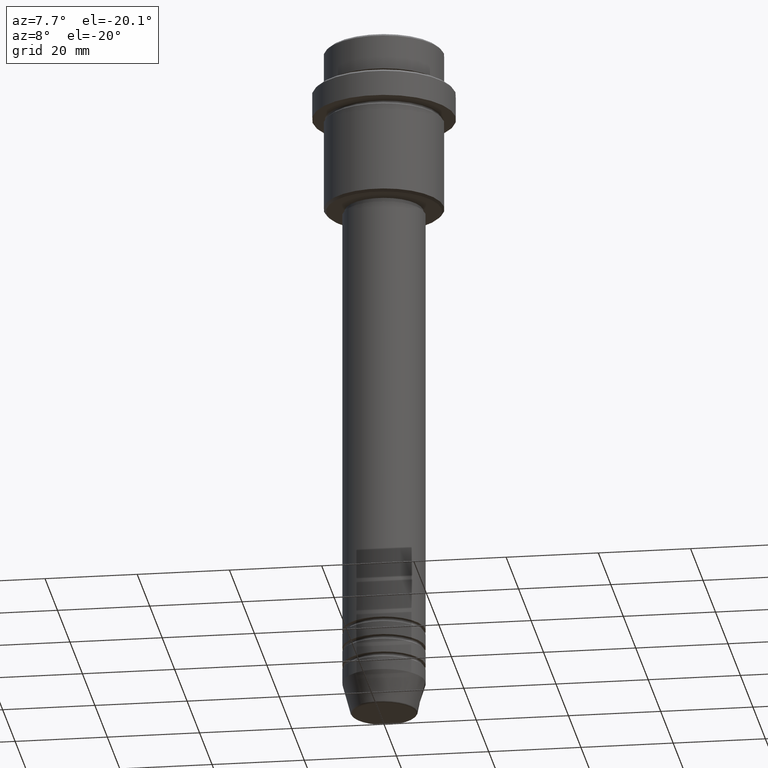
[diagram: clean part render]
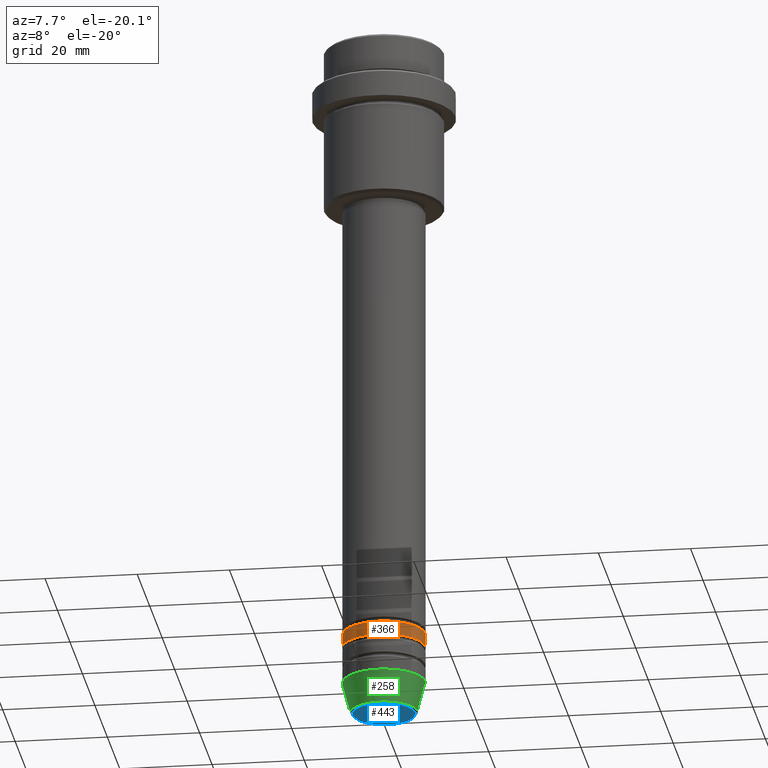
[diagram: same view with three faces highlighted in distinct colors, each labeled with its STEP entity id]
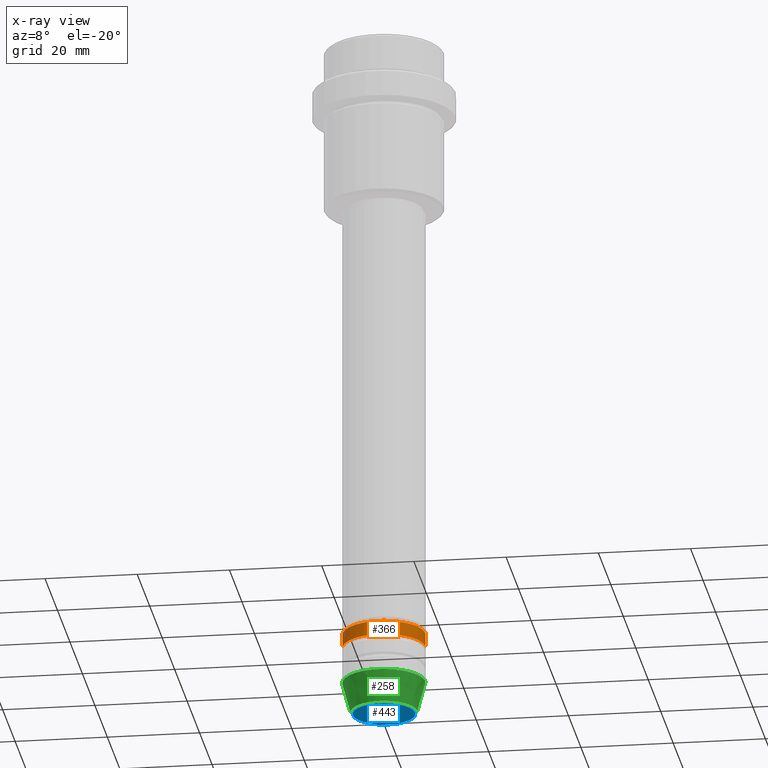
[diagram: x-ray of the same camera — body ghosted, the three highlighted faces saturated]
A machine part, auxiliary view with three faces highlighted in distinct colors.
The next image is the same camera in x-ray (body ghosted, the three faces saturated) — at least one of them is partly hidden behind the body in this view.
Their STEP definitions:

[orange] entity #366 — the highlighted cylindrical surface (partial cylindrical patch) has radius 9 mm, axis along (-0, -0, 1).
#31 = EDGE_CURVE ( 'NONE', #1288, #670, #1318, .T. ) ;
#63 = DIRECTION ( 'NONE',  ( -0.000000000000000000, -0.000000000000000000, 1.000000000000000000 ) ) ;
#88 = LINE ( 'NONE', #490, #811 ) ;
#97 = DIRECTION ( 'NONE',  ( 1.000000000000000000, 0.000000000000000000, 0.000000000000000000 ) ) ;
#153 = DIRECTION ( 'NONE',  ( -0.000000000000000000, -0.000000000000000000, 1.000000000000000000 ) ) ;
#185 = CIRCLE ( 'NONE', #1125, 9.000000000000000000 ) ;
#255 = VECTOR ( 'NONE', #313, 1000.000000000000000 ) ;
#261 = AXIS2_PLACEMENT_3D ( 'NONE', #526, #430, #1305 ) ;
#287 = DIRECTION ( 'NONE',  ( 1.000000000000000000, 0.000000000000000000, 0.000000000000000000 ) ) ;
#313 = DIRECTION ( 'NONE',  ( -0.000000000000000000, -0.000000000000000000, 1.000000000000000000 ) ) ;
#366 = ADVANCED_FACE ( 'NONE', ( #758 ), #1190, .T. ) ;
#396 = VERTEX_POINT ( 'NONE', #622 ) ;
#411 = ORIENTED_EDGE ( 'NONE', *, *, #446, .F. ) ;
#421 = CARTESIAN_POINT ( 'NONE',  ( -9.000000000000000000, 1.102182119232617714E-15, 0.000000000000000000 ) ) ;
#430 = DIRECTION ( 'NONE',  ( -0.000000000000000000, -0.000000000000000000, 1.000000000000000000 ) ) ;
#446 = EDGE_CURVE ( 'NONE', #1288, #396, #964, .T. ) ;
#490 = CARTESIAN_POINT ( 'NONE',  ( 9.000000000000000000, 0.000000000000000000, 0.000000000000000000 ) ) ;
#521 = CARTESIAN_POINT ( 'NONE',  ( -9.000000000000000000, 1.102182119232617714E-15, -135.9999999999998579 ) ) ;
#526 = CARTESIAN_POINT ( 'NONE',  ( 0.000000000000000000, 0.000000000000000000, -135.9999999999998579 ) ) ;
#589 = CARTESIAN_POINT ( 'NONE',  ( 9.000000000000000000, 0.000000000000000000, -135.9999999999998579 ) ) ;
#622 = CARTESIAN_POINT ( 'NONE',  ( -9.000000000000000000, 1.102182119232617714E-15, -132.9999999999998579 ) ) ;
#670 = VERTEX_POINT ( 'NONE', #589 ) ;
#671 = ORIENTED_EDGE ( 'NONE', *, *, #31, .T. ) ;
#676 = EDGE_CURVE ( 'NONE', #396, #1263, #185, .T. ) ;
#738 = CARTESIAN_POINT ( 'NONE',  ( 0.000000000000000000, 0.000000000000000000, 0.000000000000000000 ) ) ;
#755 = ORIENTED_EDGE ( 'NONE', *, *, #1148, .T. ) ;
#758 = FACE_OUTER_BOUND ( 'NONE', #837, .T. ) ;
#811 = VECTOR ( 'NONE', #63, 1000.000000000000000 ) ;
#837 = EDGE_LOOP ( 'NONE', ( #411, #671, #755, #1020 ) ) ;
#964 = LINE ( 'NONE', #421, #255 ) ;
#1020 = ORIENTED_EDGE ( 'NONE', *, *, #676, .F. ) ;
#1055 = AXIS2_PLACEMENT_3D ( 'NONE', #738, #1199, #97 ) ;
#1125 = AXIS2_PLACEMENT_3D ( 'NONE', #1376, #153, #287 ) ;
#1148 = EDGE_CURVE ( 'NONE', #670, #1263, #88, .T. ) ;
#1190 = CYLINDRICAL_SURFACE ( 'NONE', #1055, 9.000000000000000000 ) ;
#1199 = DIRECTION ( 'NONE',  ( -0.000000000000000000, -0.000000000000000000, 1.000000000000000000 ) ) ;
#1263 = VERTEX_POINT ( 'NONE', #1417 ) ;
#1288 = VERTEX_POINT ( 'NONE', #521 ) ;
#1305 = DIRECTION ( 'NONE',  ( 1.000000000000000000, 0.000000000000000000, 0.000000000000000000 ) ) ;
#1318 = CIRCLE ( 'NONE', #261, 9.000000000000000000 ) ;
#1376 = CARTESIAN_POINT ( 'NONE',  ( 0.000000000000000000, 0.000000000000000000, -132.9999999999998579 ) ) ;
#1417 = CARTESIAN_POINT ( 'NONE',  ( 9.000000000000000000, 0.000000000000000000, -132.9999999999998579 ) ) ;

[blue] entity #443 — the highlighted planar face has unit normal (0, -0, 1).
#34 = CARTESIAN_POINT ( 'NONE',  ( 6.740692158992659166, 0.000000000000000000, -150.9999999999999716 ) ) ;
#189 = AXIS2_PLACEMENT_3D ( 'NONE', #953, #935, #1380 ) ;
#424 = EDGE_CURVE ( 'NONE', #605, #666, #1246, .T. ) ;
#443 = ADVANCED_FACE ( 'NONE', ( #1071 ), #1400, .F. ) ;
#497 = CARTESIAN_POINT ( 'NONE',  ( -6.740692158992659166, 8.550696569392690612E-16, -150.9999999999999716 ) ) ;
#515 = DIRECTION ( 'NONE',  ( 0.000000000000000000, 0.000000000000000000, -1.000000000000000000 ) ) ;
#519 = CARTESIAN_POINT ( 'NONE',  ( 0.000000000000000000, 0.000000000000000000, -150.9999999999999716 ) ) ;
#525 = DIRECTION ( 'NONE',  ( 1.000000000000000000, 0.000000000000000000, 0.000000000000000000 ) ) ;
#544 = EDGE_LOOP ( 'NONE', ( #1367, #1050 ) ) ;
#605 = VERTEX_POINT ( 'NONE', #34 ) ;
#634 = DIRECTION ( 'NONE',  ( 1.000000000000000000, 0.000000000000000000, 0.000000000000000000 ) ) ;
#640 = DIRECTION ( 'NONE',  ( 0.000000000000000000, -0.000000000000000000, 1.000000000000000000 ) ) ;
#666 = VERTEX_POINT ( 'NONE', #497 ) ;
#806 = AXIS2_PLACEMENT_3D ( 'NONE', #519, #515, #634 ) ;
#829 = AXIS2_PLACEMENT_3D ( 'NONE', #855, #640, #525 ) ;
#832 = CIRCLE ( 'NONE', #189, 6.740692158992659166 ) ;
#855 = CARTESIAN_POINT ( 'NONE',  ( 0.000000000000000000, 0.000000000000000000, -150.9999999999999716 ) ) ;
#935 = DIRECTION ( 'NONE',  ( 0.000000000000000000, 0.000000000000000000, -1.000000000000000000 ) ) ;
#953 = CARTESIAN_POINT ( 'NONE',  ( 0.000000000000000000, 0.000000000000000000, -150.9999999999999716 ) ) ;
#1050 = ORIENTED_EDGE ( 'NONE', *, *, #1168, .T. ) ;
#1071 = FACE_OUTER_BOUND ( 'NONE', #544, .T. ) ;
#1168 = EDGE_CURVE ( 'NONE', #666, #605, #832, .T. ) ;
#1246 = CIRCLE ( 'NONE', #806, 6.740692158992659166 ) ;
#1367 = ORIENTED_EDGE ( 'NONE', *, *, #424, .T. ) ;
#1380 = DIRECTION ( 'NONE',  ( 1.000000000000000000, 0.000000000000000000, 0.000000000000000000 ) ) ;
#1400 = PLANE ( 'NONE',  #829 ) ;

[green] entity #258 — the highlighted conical surface has half-angle 15 deg.
#4 = EDGE_CURVE ( 'NONE', #290, #9, #1033, .T. ) ;
#9 = VERTEX_POINT ( 'NONE', #414 ) ;
#48 = DIRECTION ( 'NONE',  ( -0.2588190451025222938, 3.169619151431783430E-17, 0.9659258262890678681 ) ) ;
#58 = DIRECTION ( 'NONE',  ( -0.000000000000000000, -0.000000000000000000, 1.000000000000000000 ) ) ;
#66 = CARTESIAN_POINT ( 'NONE',  ( -9.000000000000000000, 1.102182119232617714E-15, -144.0000000000000000 ) ) ;
#87 = ORIENTED_EDGE ( 'NONE', *, *, #1084, .T. ) ;
#148 = CARTESIAN_POINT ( 'NONE',  ( -7.223655072137193045, 9.934123627281765110E-16, -150.6294095225512137 ) ) ;
#206 = VERTEX_POINT ( 'NONE', #148 ) ;
#213 = AXIS2_PLACEMENT_3D ( 'NONE', #591, #506, #1267 ) ;
#258 = ADVANCED_FACE ( 'NONE', ( #716 ), #646, .T. ) ;
#274 = EDGE_CURVE ( 'NONE', #206, #290, #403, .T. ) ;
#282 = AXIS2_PLACEMENT_3D ( 'NONE', #957, #1072, #1401 ) ;
#290 = VERTEX_POINT ( 'NONE', #1255 ) ;
#389 = EDGE_LOOP ( 'NONE', ( #1211, #87, #772, #1054 ) ) ;
#403 = LINE ( 'NONE', #66, #989 ) ;
#405 = DIRECTION ( 'NONE',  ( 1.000000000000000000, 0.000000000000000000, 0.000000000000000000 ) ) ;
#414 = CARTESIAN_POINT ( 'NONE',  ( 9.000000000000000000, 0.000000000000000000, -144.0000000000000000 ) ) ;
#468 = EDGE_CURVE ( 'NONE', #819, #9, #751, .T. ) ;
#506 = DIRECTION ( 'NONE',  ( -0.000000000000000000, -0.000000000000000000, 1.000000000000000000 ) ) ;
#535 = CARTESIAN_POINT ( 'NONE',  ( 9.000000000000000000, 0.000000000000000000, -144.0000000000000000 ) ) ;
#591 = CARTESIAN_POINT ( 'NONE',  ( 0.000000000000000000, 0.000000000000000000, -144.0000000000000000 ) ) ;
#639 = CARTESIAN_POINT ( 'NONE',  ( 7.223655072137193045, 0.000000000000000000, -150.6294095225512137 ) ) ;
#646 = CONICAL_SURFACE ( 'NONE', #213, 9.000000000000000000, 0.2617993877991510177 ) ;
#716 = FACE_OUTER_BOUND ( 'NONE', #389, .T. ) ;
#727 = CARTESIAN_POINT ( 'NONE',  ( 0.000000000000000000, 0.000000000000000000, -150.6294095225512137 ) ) ;
#751 = LINE ( 'NONE', #535, #1379 ) ;
#772 = ORIENTED_EDGE ( 'NONE', *, *, #468, .T. ) ;
#786 = AXIS2_PLACEMENT_3D ( 'NONE', #727, #58, #405 ) ;
#819 = VERTEX_POINT ( 'NONE', #639 ) ;
#957 = CARTESIAN_POINT ( 'NONE',  ( 0.000000000000000000, 0.000000000000000000, -144.0000000000000000 ) ) ;
#989 = VECTOR ( 'NONE', #48, 1000.000000000000000 ) ;
#1033 = CIRCLE ( 'NONE', #282, 9.000000000000000000 ) ;
#1054 = ORIENTED_EDGE ( 'NONE', *, *, #4, .F. ) ;
#1072 = DIRECTION ( 'NONE',  ( -0.000000000000000000, -0.000000000000000000, 1.000000000000000000 ) ) ;
#1084 = EDGE_CURVE ( 'NONE', #206, #819, #1103, .T. ) ;
#1093 = DIRECTION ( 'NONE',  ( 0.2588190451025222938, 0.000000000000000000, 0.9659258262890678681 ) ) ;
#1103 = CIRCLE ( 'NONE', #786, 7.223655072137193045 ) ;
#1211 = ORIENTED_EDGE ( 'NONE', *, *, #274, .F. ) ;
#1255 = CARTESIAN_POINT ( 'NONE',  ( -9.000000000000000000, 1.102182119232617714E-15, -144.0000000000000000 ) ) ;
#1267 = DIRECTION ( 'NONE',  ( 1.000000000000000000, 0.000000000000000000, 0.000000000000000000 ) ) ;
#1379 = VECTOR ( 'NONE', #1093, 1000.000000000000000 ) ;
#1401 = DIRECTION ( 'NONE',  ( 1.000000000000000000, 0.000000000000000000, 0.000000000000000000 ) ) ;